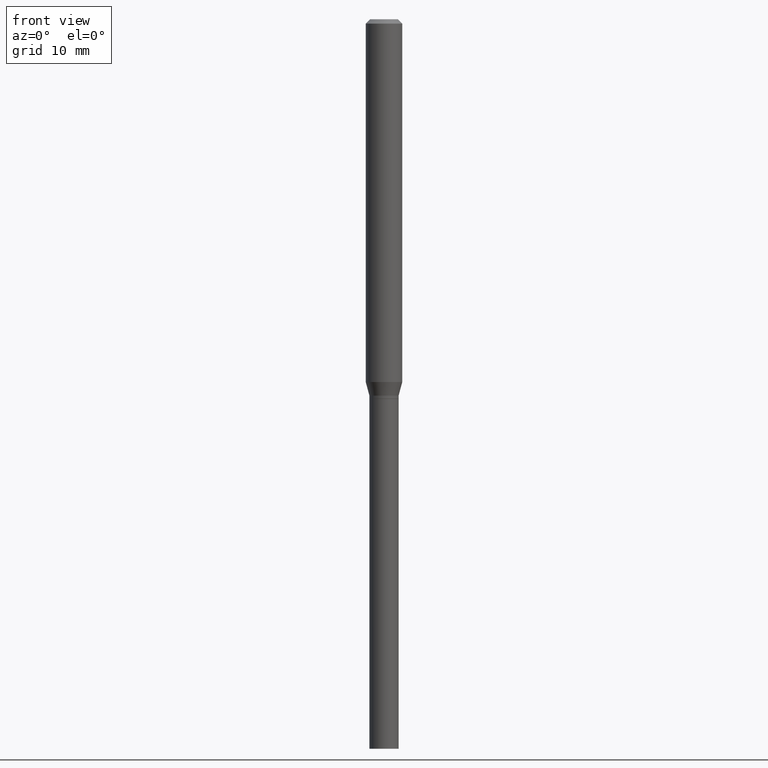
[diagram: clean part render]
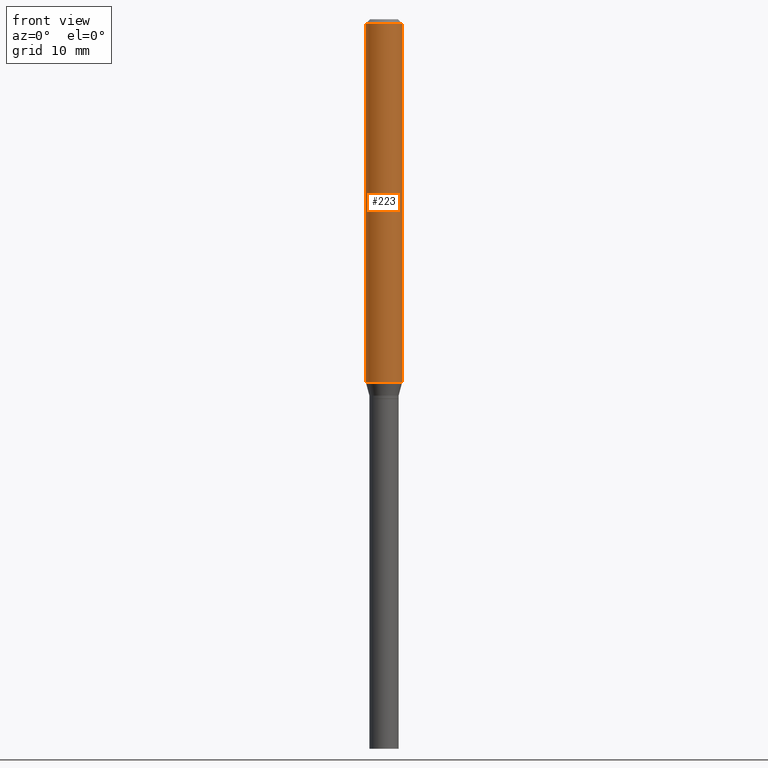
[diagram: same view with one face highlighted and labeled with its STEP entity id]
A machine part, front view. The second image highlights one B-rep face of the part: STEP entity #223.
In plain terms, the highlighted cylindrical surface (edge-blend (fillet) strip) has radius 1.5875 mm, axis along (-0, 0, 1).
Its self-contained STEP definition (entity closure, byte-faithful):
#51 = DIRECTION ( 'NONE',  ( -2.445468806185136597E-29, 3.491481338843145583E-15, 1.000000000000000000 ) ) ;
#68 = CARTESIAN_POINT ( 'NONE',  ( -0.06250000000000000000, -1.752662452806080514E-15, -0.01499999999999999944 ) ) ;
#79 = CARTESIAN_POINT ( 'NONE',  ( -0.06250000000000000000, -3.897041895379576565E-15, -1.243349364905387944 ) ) ;
#88 = EDGE_CURVE ( 'NONE', #281, #433, #211, .T. ) ;
#97 = LINE ( 'NONE', #359, #367 ) ;
#98 = VERTEX_POINT ( 'NONE', #382 ) ;
#101 = EDGE_LOOP ( 'NONE', ( #301, #409, #255, #182 ) ) ;
#109 = DIRECTION ( 'NONE',  ( -2.445468806185136877E-29, 3.491481338843145188E-15, 1.000000000000000000 ) ) ;
#121 = CIRCLE ( 'NONE', #448, 0.06250000000000000000 ) ;
#162 = EDGE_CURVE ( 'NONE', #98, #433, #201, .T. ) ;
#164 = CARTESIAN_POINT ( 'NONE',  ( 3.040572087066227108E-29, -4.341131105229639181E-15, -1.243349364905387944 ) ) ;
#168 = DIRECTION ( 'NONE',  ( -2.445468806185136597E-29, 3.491481338843145583E-15, 1.000000000000000000 ) ) ;
#170 = AXIS2_PLACEMENT_3D ( 'NONE', #193, #447, #340 ) ;
#182 = ORIENTED_EDGE ( 'NONE', *, *, #88, .F. ) ;
#184 = VECTOR ( 'NONE', #303, 39.37007874015748143 ) ;
#193 = CARTESIAN_POINT ( 'NONE',  ( 3.668203209277705088E-31, -5.237222008264718399E-17, -0.01499999999999999944 ) ) ;
#197 = DIRECTION ( 'NONE',  ( 1.000000000000000000, -6.982962677686266711E-15, 4.876176775795935793E-29 ) ) ;
#201 = LINE ( 'NONE', #310, #184 ) ;
#202 = EDGE_CURVE ( 'NONE', #459, #98, #121, .T. ) ;
#211 = CIRCLE ( 'NONE', #170, 0.06250000000000000000 ) ;
#223 = ADVANCED_FACE ( 'NONE', ( #344 ), #228, .T. ) ;
#228 = CYLINDRICAL_SURFACE ( 'NONE', #336, 0.06250000000000000000 ) ;
#255 = ORIENTED_EDGE ( 'NONE', *, *, #162, .T. ) ;
#281 = VERTEX_POINT ( 'NONE', #68 ) ;
#301 = ORIENTED_EDGE ( 'NONE', *, *, #379, .F. ) ;
#303 = DIRECTION ( 'NONE',  ( -2.445468806185136877E-29, 3.491481338843145188E-15, 1.000000000000000000 ) ) ;
#310 = CARTESIAN_POINT ( 'NONE',  ( 0.06250000000000000000, -4.364351673553916694E-16, 3.047610484872459871E-30 ) ) ;
#328 = CARTESIAN_POINT ( 'NONE',  ( 0.06250000000000000000, -4.888073874380388472E-16, -0.01499999999999999944 ) ) ;
#336 = AXIS2_PLACEMENT_3D ( 'NONE', #376, #51, #197 ) ;
#340 = DIRECTION ( 'NONE',  ( 1.000000000000000000, -6.982962677686266711E-15, 0.000000000000000000 ) ) ;
#344 = FACE_OUTER_BOUND ( 'NONE', #101, .T. ) ;
#359 = CARTESIAN_POINT ( 'NONE',  ( -0.06250000000000000000, 4.440892098500626162E-16, -3.074334431409316114E-30 ) ) ;
#367 = VECTOR ( 'NONE', #109, 39.37007874015748143 ) ;
#376 = CARTESIAN_POINT ( 'NONE',  ( 0.000000000000000000, 0.000000000000000000, 0.000000000000000000 ) ) ;
#379 = EDGE_CURVE ( 'NONE', #459, #281, #97, .T. ) ;
#382 = CARTESIAN_POINT ( 'NONE',  ( 0.06250000000000000000, -4.777566272585030851E-15, -1.243349364905387944 ) ) ;
#409 = ORIENTED_EDGE ( 'NONE', *, *, #202, .T. ) ;
#415 = DIRECTION ( 'NONE',  ( 1.000000000000000000, -6.982962677686270655E-15, 0.000000000000000000 ) ) ;
#433 = VERTEX_POINT ( 'NONE', #328 ) ;
#447 = DIRECTION ( 'NONE',  ( -2.445468806185136597E-29, 3.491481338843145583E-15, 1.000000000000000000 ) ) ;
#448 = AXIS2_PLACEMENT_3D ( 'NONE', #164, #168, #415 ) ;
#459 = VERTEX_POINT ( 'NONE', #79 ) ;